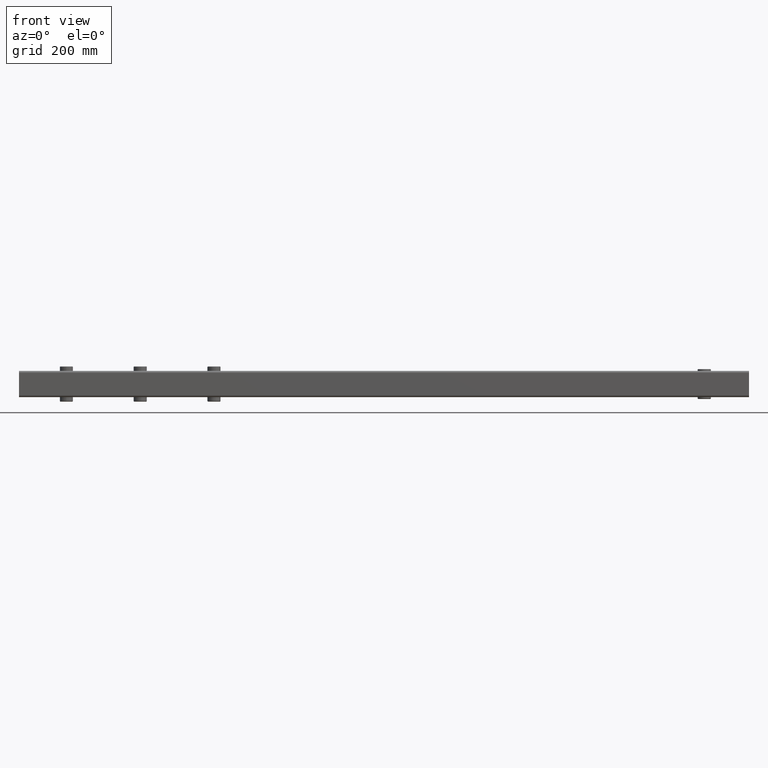
[diagram: clean part render]
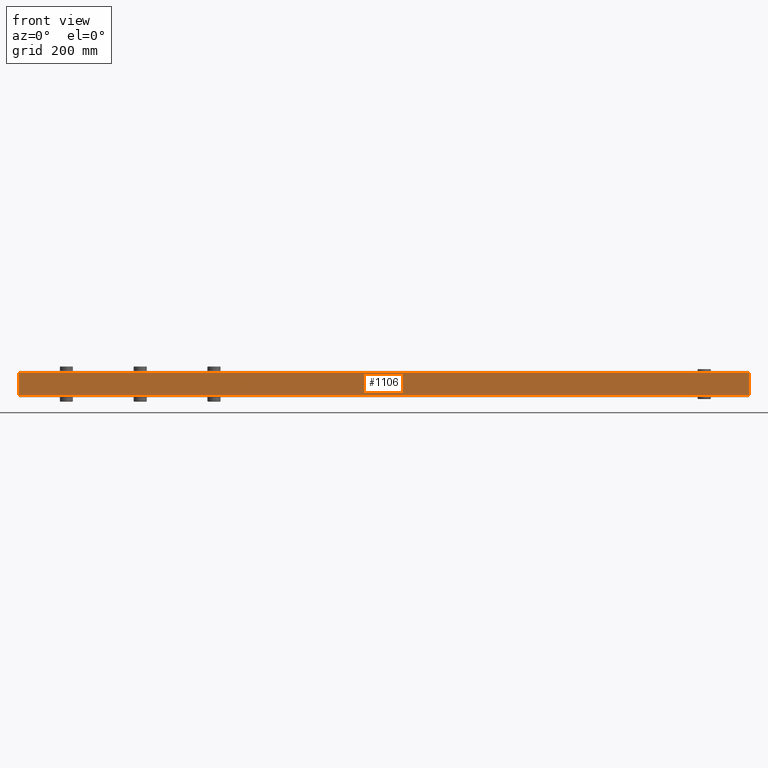
[diagram: same view with one face highlighted and labeled with its STEP entity id]
A machine part, front view. The second image highlights one B-rep face of the part: STEP entity #1106.
In plain terms, the highlighted planar face has unit normal (-0, 1, -0).
Its self-contained STEP definition (entity closure, byte-faithful):
#7 = EDGE_CURVE ( 'NONE', #590, #1341, #1675, .T. ) ;
#78 = CARTESIAN_POINT ( 'NONE',  ( 692.5000000000000000, -24.99999999999994671, -20.99999999999992539 ) ) ;
#100 = EDGE_CURVE ( 'NONE', #590, #876, #695, .T. ) ;
#137 = CARTESIAN_POINT ( 'NONE',  ( -692.5000000000000000, -25.00000000000036948, -20.99999999999991118 ) ) ;
#156 = CARTESIAN_POINT ( 'NONE',  ( -692.5000000000000000, -25.00000000000036948, -20.99999999999991118 ) ) ;
#160 = DIRECTION ( 'NONE',  ( 0.000000000000000000, 3.304235192336777484E-15, 1.000000000000000000 ) ) ;
#333 = CARTESIAN_POINT ( 'NONE',  ( 692.5000000000000000, -24.99999999999980815, 21.00000000000007105 ) ) ;
#362 = DIRECTION ( 'NONE',  ( 0.000000000000000000, 3.304235192336777090E-15, 1.000000000000000000 ) ) ;
#463 = CARTESIAN_POINT ( 'NONE',  ( -692.5000000000000000, -25.00000000000023093, 21.00000000000007105 ) ) ;
#526 = CARTESIAN_POINT ( 'NONE',  ( -692.5000000000000000, -25.00000000000036948, -20.99999999999992539 ) ) ;
#577 = CARTESIAN_POINT ( 'NONE',  ( 692.5000000000000000, -24.99999999999994671, -20.99999999999991118 ) ) ;
#590 = VERTEX_POINT ( 'NONE', #993 ) ;
#666 = EDGE_CURVE ( 'NONE', #876, #896, #713, .T. ) ;
#695 = LINE ( 'NONE', #526, #2178 ) ;
#713 = LINE ( 'NONE', #577, #920 ) ;
#761 = EDGE_CURVE ( 'NONE', #1341, #896, #1402, .T. ) ;
#827 = EDGE_LOOP ( 'NONE', ( #2115, #1828, #1921, #1588 ) ) ;
#849 = VECTOR ( 'NONE', #362, 1000.000000000000000 ) ;
#876 = VERTEX_POINT ( 'NONE', #78 ) ;
#896 = VERTEX_POINT ( 'NONE', #333 ) ;
#920 = VECTOR ( 'NONE', #1394, 1000.000000000000000 ) ;
#960 = AXIS2_PLACEMENT_3D ( 'NONE', #137, #1840, #160 ) ;
#993 = CARTESIAN_POINT ( 'NONE',  ( -692.5000000000000000, -25.00000000000036948, -20.99999999999992539 ) ) ;
#1014 = PLANE ( 'NONE',  #960 ) ;
#1106 = ADVANCED_FACE ( 'NONE', ( #2145 ), #1014, .F. ) ;
#1203 = DIRECTION ( 'NONE',  ( 1.000000000000000000, 3.061616997868382648E-16, -0.000000000000000000 ) ) ;
#1341 = VERTEX_POINT ( 'NONE', #463 ) ;
#1394 = DIRECTION ( 'NONE',  ( 0.000000000000000000, 3.304235192336777090E-15, 1.000000000000000000 ) ) ;
#1402 = LINE ( 'NONE', #1906, #1661 ) ;
#1588 = ORIENTED_EDGE ( 'NONE', *, *, #100, .T. ) ;
#1661 = VECTOR ( 'NONE', #1737, 1000.000000000000000 ) ;
#1675 = LINE ( 'NONE', #156, #849 ) ;
#1737 = DIRECTION ( 'NONE',  ( 1.000000000000000000, 3.061616997868382648E-16, -0.000000000000000000 ) ) ;
#1828 = ORIENTED_EDGE ( 'NONE', *, *, #761, .F. ) ;
#1840 = DIRECTION ( 'NONE',  ( -3.061616997868382648E-16, 1.000000000000000000, -3.304235192336777484E-15 ) ) ;
#1906 = CARTESIAN_POINT ( 'NONE',  ( -692.5000000000000000, -25.00000000000023093, 21.00000000000007105 ) ) ;
#1921 = ORIENTED_EDGE ( 'NONE', *, *, #7, .F. ) ;
#2115 = ORIENTED_EDGE ( 'NONE', *, *, #666, .T. ) ;
#2145 = FACE_OUTER_BOUND ( 'NONE', #827, .T. ) ;
#2178 = VECTOR ( 'NONE', #1203, 1000.000000000000000 ) ;